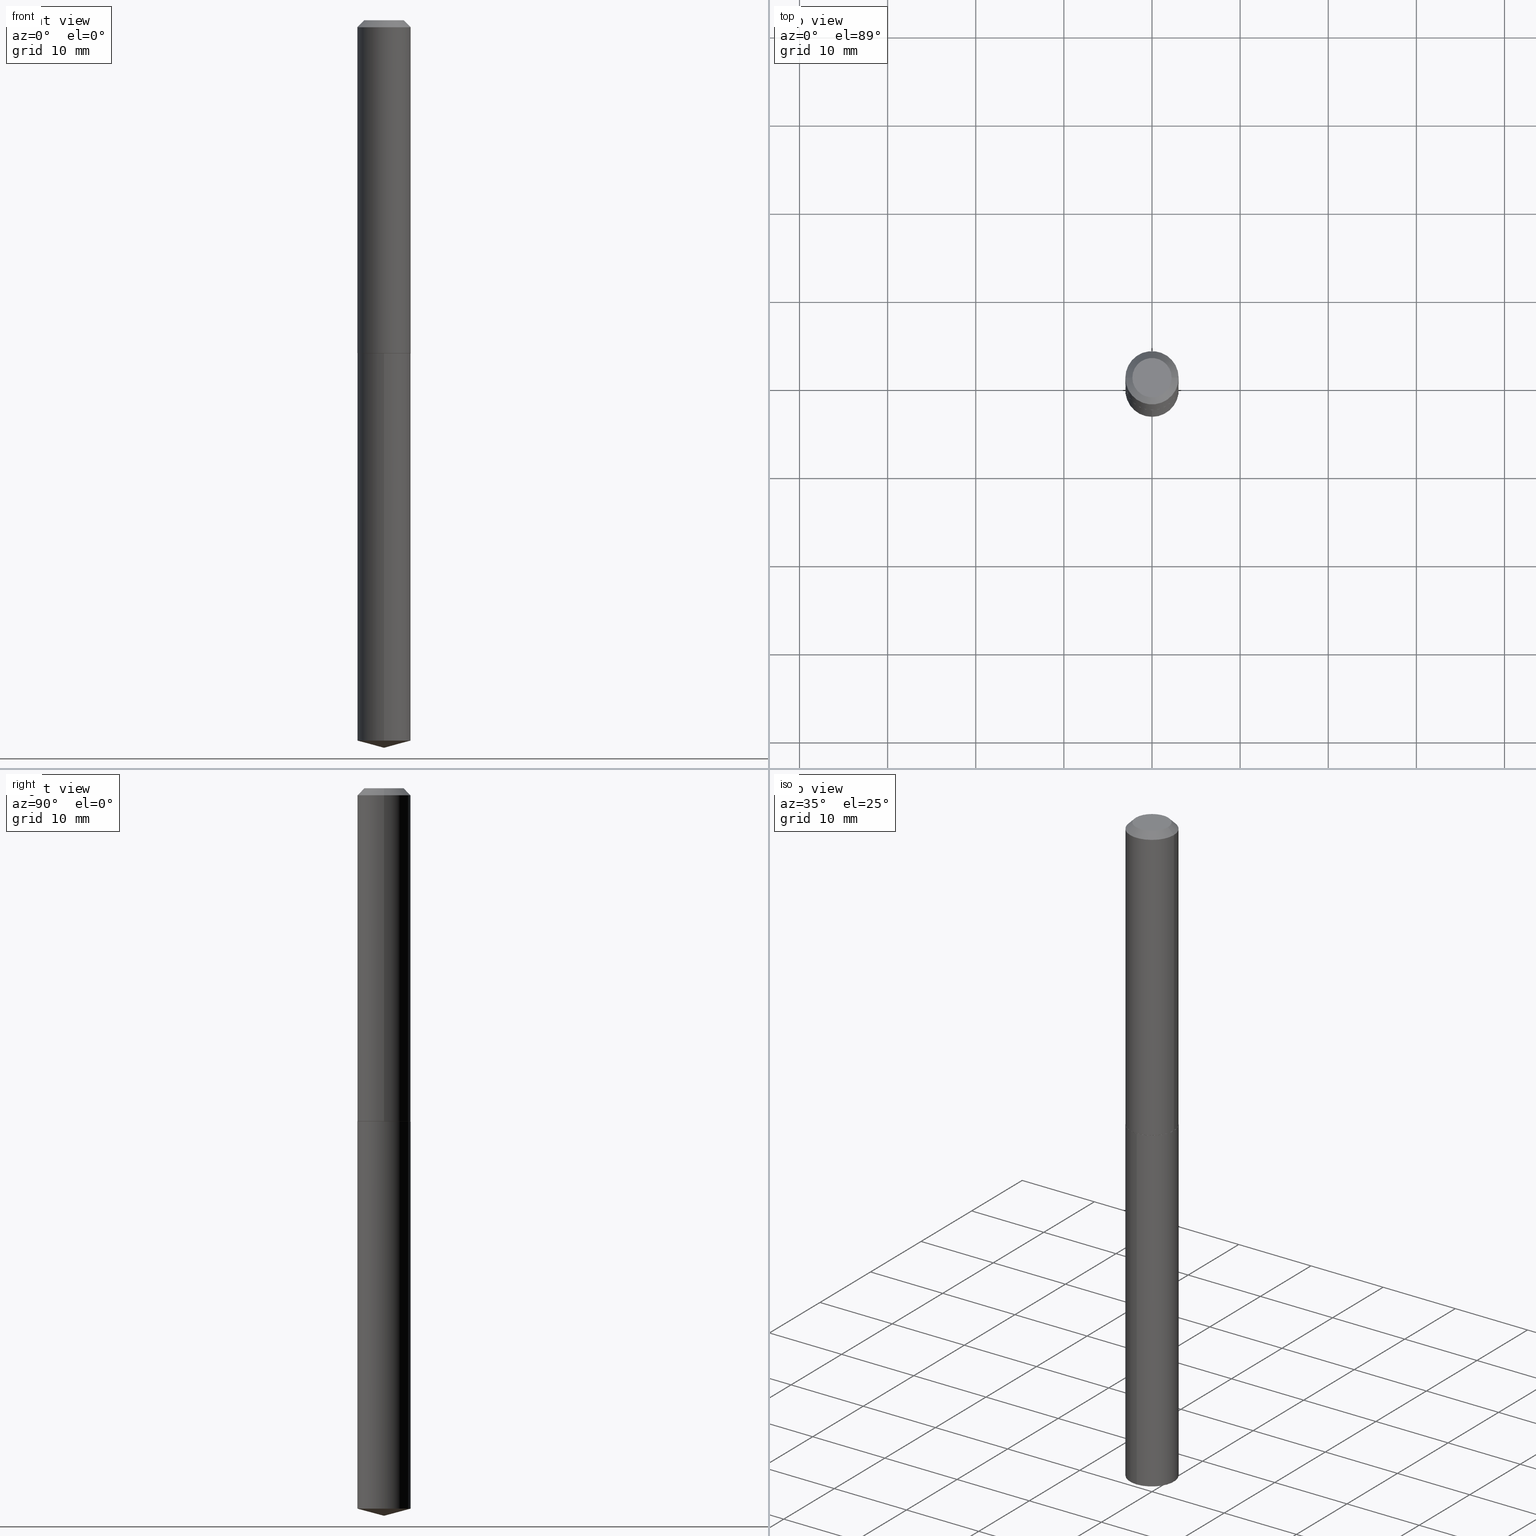
[diagram: canonical four-view strip — front | top / right | iso, engineering-drawing reading convention]
A machine part, canonical four-view strip (front | top / right | iso — engineering-drawing reading convention). The complete STEP part file that produces these views, byte-faithful:
ISO-10303-21;
HEADER;
FILE_DESCRIPTION (( 'STEP AP203' ),
    '1' );
FILE_NAME ('53202.STEP',
    '2024-04-22T19:20:55',
    ( '' ),
    ( '' ),
    'SwSTEP 2.0',
    'SolidWorks 2023',
    '' );
FILE_SCHEMA (( 'CONFIG_CONTROL_DESIGN' ));
ENDSEC;

DATA;
#1 = APPROVAL_STATUS ( 'not_yet_approved' ) ;
#2 = PLANE ( 'NONE',  #358 ) ;
#3 = VERTEX_POINT ( 'NONE', #47 ) ;
#4 = EDGE_CURVE ( 'NONE', #162, #316, #9, .T. ) ;
#5 = LINE ( 'NONE', #125, #323 ) ;
#6 = FACE_OUTER_BOUND ( 'NONE', #91, .T. ) ;
#7 = EDGE_LOOP ( 'NONE', ( #102, #99, #360, #220 ) ) ;
#8 = DIRECTION ( 'NONE',  ( -2.445468806185136597E-29, 3.491481338843145583E-15, 1.000000000000000000 ) ) ;
#9 = CIRCLE ( 'NONE', #390, 0.1190000000000000085 ) ;
#10 = AXIS2_PLACEMENT_3D ( 'NONE', #121, #199, #314 ) ;
#11 = SHAPE_DEFINITION_REPRESENTATION ( #63, #355 ) ;
#12 = EDGE_CURVE ( 'NONE', #283, #94, #49, .T. ) ;
#13 = CARTESIAN_POINT ( 'NONE',  ( -8.309725586446292892E-16, -0.1190000000000051988, -1.487999999999999545 ) ) ;
#14 = EDGE_CURVE ( 'NONE', #283, #153, #291, .T. ) ;
#15 = VERTEX_POINT ( 'NONE', #226 ) ;
#16 = VERTEX_POINT ( 'NONE', #169 ) ;
#17 = AXIS2_PLACEMENT_3D ( 'NONE', #56, #234, #240 ) ;
#18 = CONICAL_SURFACE ( 'NONE', #82, 0.1190000000000001890, 0.7853981633974824739 ) ;
#19 = LINE ( 'NONE', #13, #366 ) ;
#20 = EDGE_CURVE ( 'NONE', #368, #168, #192, .T. ) ;
#21 = PLANE ( 'NONE',  #58 ) ;
#22 = DIRECTION ( 'NONE',  ( -2.445468806185136597E-29, 3.491481338843145583E-15, 1.000000000000000000 ) ) ;
#23 = PRODUCT_DEFINITION ( 'UNKNOWN', '', #138, #145 ) ;
#24 = CARTESIAN_POINT ( 'NONE',  ( 7.642090019328600035E-31, -1.091087918388489897E-16, -0.03125000000000020123 ) ) ;
#25 = UNCERTAINTY_MEASURE_WITH_UNIT (LENGTH_MEASURE( 1.000000000000000082E-05 ), #328, 'distance_accuracy_value', 'NONE');
#26 = LOCAL_TIME ( 15, 20, 55.00000000000000000, #385 ) ;
#27 = DIRECTION ( 'NONE',  ( -2.445468806185136877E-29, 3.491481338843145188E-15, 1.000000000000000000 ) ) ;
#28 = DIRECTION ( 'NONE',  ( 1.000000000000000000, -6.982962677686265133E-15, 0.000000000000000000 ) ) ;
#29 = DIRECTION ( 'NONE',  ( -1.000000000000000000, 6.982962677686267499E-15, 0.000000000000000000 ) ) ;
#30 = CARTESIAN_POINT ( 'NONE',  ( -5.989671091818585255E-48, 8.551662891793849420E-34, 2.449293598294678361E-19 ) ) ;
#31 = PERSON_AND_ORGANIZATION ( #86, #178 ) ;
#32 = CC_DESIGN_APPROVAL ( #265, ( #257 ) ) ;
#33 = ORIENTED_EDGE ( 'NONE', *, *, #359, .F. ) ;
#34 = PERSON_AND_ORGANIZATION ( #86, #178 ) ;
#35 = EDGE_LOOP ( 'NONE', ( #343, #136, #246, #286 ) ) ;
#36 =( NAMED_UNIT ( * ) PLANE_ANGLE_UNIT ( ) SI_UNIT ( $, .RADIAN. ) );
#37 = AXIS2_PLACEMENT_3D ( 'NONE', #280, #345, #109 ) ;
#38 = CIRCLE ( 'NONE', #93, 0.1185000000000002579 ) ;
#39 = ORIENTED_EDGE ( 'NONE', *, *, #340, .F. ) ;
#40 = CONICAL_SURFACE ( 'NONE', #17, 0.1190000000000001890, 0.7853981633974824739 ) ;
#41 = DIRECTION ( 'NONE',  ( -2.439623832535255170E-29, 3.499851673785016113E-15, 1.000000000000000000 ) ) ;
#42 = ORIENTED_EDGE ( 'NONE', *, *, #206, .F. ) ;
#43 = EDGE_CURVE ( 'NONE', #168, #15, #374, .T. ) ;
#44 = DIRECTION ( 'NONE',  ( -0.7071067811865715536, 7.493145998870439357E-15, 0.7071067811865232589 ) ) ;
#45 = LOCAL_TIME ( 15, 20, 55.00000000000000000, #310 ) ;
#46 = ADVANCED_FACE ( 'NONE', ( #74 ), #315, .T. ) ;
#47 = CARTESIAN_POINT ( 'NONE',  ( 0.1190000000000001890, -6.024551050173846263E-15, -1.487500000000000266 ) ) ;
#48 = CARTESIAN_POINT ( 'NONE',  ( -0.1190000000000001890, -4.348032635974659038E-15, -1.487500000000000266 ) ) ;
#49 = LINE ( 'NONE', #233, #373 ) ;
#50 = APPROVAL_PERSON_ORGANIZATION ( #126, #265, #279 ) ;
#51 = FACE_OUTER_BOUND ( 'NONE', #123, .T. ) ;
#52 = APPROVAL ( #269, 'UNSPECIFIED' ) ;
#53 = DIRECTION ( 'NONE',  ( -2.445468806185136597E-29, 3.491481338843145583E-15, 1.000000000000000000 ) ) ;
#54 = CARTESIAN_POINT ( 'NONE',  ( 7.642090019328600035E-31, -1.091087918388489897E-16, -0.03125000000000020123 ) ) ;
#55 = DIRECTION ( 'NONE',  ( 1.000000000000000000, -6.982962677686264344E-15, 0.000000000000000000 ) ) ;
#56 = CARTESIAN_POINT ( 'NONE',  ( 3.637634849200391024E-29, -5.193578491529179010E-15, -1.487500000000000266 ) ) ;
#57 = APPLICATION_PROTOCOL_DEFINITION ( 'international standard', 'config_control_design', 1994, #241 ) ;
#58 = AXIS2_PLACEMENT_3D ( 'NONE', #141, #261, #85 ) ;
#59 = CARTESIAN_POINT ( 'NONE',  ( -0.1190000000000000085, 7.218637668058168706E-16, -0.03125000000000020123 ) ) ;
#60 = EDGE_LOOP ( 'NONE', ( #67, #140, #371, #304 ) ) ;
#61 = DATE_AND_TIME ( #122, #26 ) ;
#62 = CYLINDRICAL_SURFACE ( 'NONE', #105, 0.1190000000000001057 ) ;
#63 = PRODUCT_DEFINITION_SHAPE ( 'NONE', 'NONE',  #23 ) ;
#64 = ORIENTED_EDGE ( 'NONE', *, *, #384, .T. ) ;
#65 = APPROVAL_ROLE ( '' ) ;
#66 = FACE_OUTER_BOUND ( 'NONE', #311, .T. ) ;
#67 = ORIENTED_EDGE ( 'NONE', *, *, #127, .T. ) ;
#68 = AXIS2_PLACEMENT_3D ( 'NONE', #100, #8, #81 ) ;
#69 = AXIS2_PLACEMENT_3D ( 'NONE', #353, #180, #266 ) ;
#70 = ORIENTED_EDGE ( 'NONE', *, *, #206, .T. ) ;
#71 = CARTESIAN_POINT ( 'NONE',  ( -5.989671091818585255E-48, 8.551662891793849420E-34, 2.449293598294678361E-19 ) ) ;
#72 = ORIENTED_EDGE ( 'NONE', *, *, #97, .F. ) ;
#73 = DIRECTION ( 'NONE',  ( 1.000000000000000000, -6.982962677686267499E-15, 0.000000000000000000 ) ) ;
#74 = FACE_OUTER_BOUND ( 'NONE', #174, .T. ) ;
#75 = DIRECTION ( 'NONE',  ( -2.439623832535255170E-29, 3.499851673785016113E-15, 1.000000000000000000 ) ) ;
#76 = CALENDAR_DATE ( 2024, 22, 4 ) ;
#77 = DIRECTION ( 'NONE',  ( -2.445468806185136597E-29, 3.491481338843145583E-15, 1.000000000000000000 ) ) ;
#78 = EDGE_CURVE ( 'NONE', #213, #16, #19, .T. ) ;
#79 = ORIENTED_EDGE ( 'NONE', *, *, #384, .F. ) ;
#80 = DIRECTION ( 'NONE',  ( -6.982962677686265922E-15, -1.000000000000000000, 4.591341165822290427E-15 ) ) ;
#81 = DIRECTION ( 'NONE',  ( 1.000000000000000000, -6.982962677686264344E-15, 0.000000000000000000 ) ) ;
#82 = AXIS2_PLACEMENT_3D ( 'NONE', #176, #289, #28 ) ;
#83 = LINE ( 'NONE', #287, #209 ) ;
#84 = EDGE_CURVE ( 'NONE', #16, #15, #251, .T. ) ;
#85 = DIRECTION ( 'NONE',  ( 1.000000000000000000, -6.982962677686265922E-15, 4.876176775795935793E-29 ) ) ;
#86 = PERSON ( 'UNSPECIFIED', 'UNSPECIFIED', 'UNSPECIFIED', ('UNSPECIFIED'), ('UNSPECIFIED'), ('UNSPECIFIED') ) ;
#87 = DIRECTION ( 'NONE',  ( -2.445468806185136597E-29, 3.491481338843145583E-15, 1.000000000000000000 ) ) ;
#88 = DIMENSIONAL_EXPONENTS ( 1.000000000000000000, 0.000000000000000000, 0.000000000000000000, 0.000000000000000000, 0.000000000000000000, 0.000000000000000000, 0.000000000000000000 ) ;
#89 = CARTESIAN_POINT ( 'NONE',  ( -0.1185000000000002579, -4.350681863148769450E-15, -1.487999999999999989 ) ) ;
#90 = DIRECTION ( 'NONE',  ( -2.439623832535255170E-29, 3.499851673785016113E-15, 1.000000000000000000 ) ) ;
#91 = EDGE_LOOP ( 'NONE', ( #130, #104, #333, #198 ) ) ;
#92 = APPROVAL_ROLE ( '' ) ;
#93 = AXIS2_PLACEMENT_3D ( 'NONE', #237, #146, #55 ) ;
#94 = VERTEX_POINT ( 'NONE', #48 ) ;
#95 = MECHANICAL_CONTEXT ( 'NONE', #241, 'mechanical' ) ;
#96 = VERTEX_POINT ( 'NONE', #116 ) ;
#97 = EDGE_CURVE ( 'NONE', #158, #96, #139, .T. ) ;
#98 = VECTOR ( 'NONE', #349, 39.37007874015748854 ) ;
#99 = ORIENTED_EDGE ( 'NONE', *, *, #14, .T. ) ;
#100 = CARTESIAN_POINT ( 'NONE',  ( 3.638857583603483825E-29, -5.195324232198600513E-15, -1.487999999999999989 ) ) ;
#101 = MANIFOLD_SOLID_BREP ( 'Body-Move/Copy2[1]', #242 ) ;
#102 = ORIENTED_EDGE ( 'NONE', *, *, #12, .F. ) ;
#103 = CONICAL_SURFACE ( 'NONE', #10, 146.9311341562571158, 1.308996938995750758 ) ;
#104 = ORIENTED_EDGE ( 'NONE', *, *, #189, .T. ) ;
#105 = AXIS2_PLACEMENT_3D ( 'NONE', #365, #222, #300 ) ;
#106 = DATE_TIME_ROLE ( 'classification_date' ) ;
#107 = PRODUCT_RELATED_PRODUCT_CATEGORY ( 'detail', '', ( #298 ) ) ;
#108 = DIRECTION ( 'NONE',  ( 2.439623832535254889E-29, -3.499851673785016113E-15, -1.000000000000000000 ) ) ;
#109 = DIRECTION ( 'NONE',  ( 1.000000000000000000, -6.982962677686266711E-15, 4.876176775795935793E-29 ) ) ;
#110 = CARTESIAN_POINT ( 'NONE',  ( 0.08775000000000000855, -7.637583764390566358E-16, 2.449293598342803980E-19 ) ) ;
#111 = ORIENTED_EDGE ( 'NONE', *, *, #4, .F. ) ;
#112 = DIRECTION ( 'NONE',  ( 0.7071067811865453523, -7.319954787623248157E-15, -0.7071067811865496822 ) ) ;
#113 = LINE ( 'NONE', #59, #128 ) ;
#114 = LOCAL_TIME ( 15, 20, 55.00000000000000000, #152 ) ;
#115 = DIRECTION ( 'NONE',  ( 1.000000000000000000, -6.982962677686267499E-15, 4.876175344873014679E-29 ) ) ;
#116 = CARTESIAN_POINT ( 'NONE',  ( -0.08775000000000000855, 6.673093708863934050E-16, 2.449293598249920712E-19 ) ) ;
#117 = EDGE_CURVE ( 'NONE', #96, #162, #113, .T. ) ;
#118 = DIRECTION ( 'NONE',  ( 1.000000000000000000, -6.982962677686267499E-15, 0.000000000000000000 ) ) ;
#119 = FACE_OUTER_BOUND ( 'NONE', #389, .T. ) ;
#120 = ADVANCED_FACE ( 'NONE', ( #6 ), #62, .T. ) ;
#121 = CARTESIAN_POINT ( 'NONE',  ( -8.811070760674716084E-28, 1.264273730943802372E-13, 36.12007874015748143 ) ) ;
#122 = CALENDAR_DATE ( 2024, 22, 4 ) ;
#123 = EDGE_LOOP ( 'NONE', ( #223, #281 ) ) ;
#124 = ORIENTED_EDGE ( 'NONE', *, *, #232, .T. ) ;
#125 = CARTESIAN_POINT ( 'NONE',  ( 0.1190000000000001057, -8.309725586446664643E-16, 5.802650363197168610E-30 ) ) ;
#126 = PERSON_AND_ORGANIZATION ( #86, #178 ) ;
#127 = EDGE_CURVE ( 'NONE', #213, #168, #170, .T. ) ;
#128 = VECTOR ( 'NONE', #331, 39.37007874015748143 ) ;
#129 = AXIS2_PLACEMENT_3D ( 'NONE', #207, #53, #321 ) ;
#130 = ORIENTED_EDGE ( 'NONE', *, *, #149, .T. ) ;
#131 = COORDINATED_UNIVERSAL_TIME_OFFSET ( 5, 0, .BEHIND. ) ;
#132 = DIRECTION ( 'NONE',  ( 6.863315791527699781E-15, 0.9659258262890701996, 0.2588190451025139671 ) ) ;
#133 = ORIENTED_EDGE ( 'NONE', *, *, #84, .T. ) ;
#134 = ADVANCED_FACE ( 'NONE', ( #66 ), #2, .F. ) ;
#135 = ORIENTED_EDGE ( 'NONE', *, *, #160, .F. ) ;
#136 = ORIENTED_EDGE ( 'NONE', *, *, #12, .T. ) ;
#137 = AXIS2_PLACEMENT_3D ( 'NONE', #24, #377, #29 ) ;
#138 = PRODUCT_DEFINITION_FORMATION_WITH_SPECIFIED_SOURCE ( 'ANY', '', #298, .NOT_KNOWN. ) ;
#139 = CIRCLE ( 'NONE', #201, 0.08775000000000000855 ) ;
#140 = ORIENTED_EDGE ( 'NONE', *, *, #43, .T. ) ;
#141 = CARTESIAN_POINT ( 'NONE',  ( 3.638857583603483825E-29, -5.195324232198600513E-15, -1.487999999999999989 ) ) ;
#142 = LINE ( 'NONE', #376, #163 ) ;
#143 = CC_DESIGN_PERSON_AND_ORGANIZATION_ASSIGNMENT ( #166, #161, ( #138 ) ) ;
#144 = CYLINDRICAL_SURFACE ( 'NONE', #292, 0.1190000000000000085 ) ;
#145 = DESIGN_CONTEXT ( 'detailed design', #204, 'design' ) ;
#146 = DIRECTION ( 'NONE',  ( -2.445468806185136597E-29, 3.491481338843145583E-15, 1.000000000000000000 ) ) ;
#147 = ADVANCED_FACE ( 'NONE', ( #372 ), #259, .F. ) ;
#148 = LINE ( 'NONE', #290, #157 ) ;
#149 = EDGE_CURVE ( 'NONE', #3, #94, #190, .T. ) ;
#150 = CIRCLE ( 'NONE', #129, 0.1190000000000001890 ) ;
#151 = PERSON_AND_ORGANIZATION_ROLE ( 'design_owner' ) ;
#152 = COORDINATED_UNIVERSAL_TIME_OFFSET ( 5, 0, .BEHIND. ) ;
#153 = VERTEX_POINT ( 'NONE', #312 ) ;
#154 = DIRECTION ( 'NONE',  ( -6.982962677686265922E-15, -1.000000000000000000, 4.591341165822290427E-15 ) ) ;
#155 = DIRECTION ( 'NONE',  ( 1.000000000000000000, 0.000000000000000000, 0.000000000000000000 ) ) ;
#156 = CIRCLE ( 'NONE', #296, 0.1190000000000000085 ) ;
#157 = VECTOR ( 'NONE', #27, 39.37007874015748143 ) ;
#158 = VERTEX_POINT ( 'NONE', #110 ) ;
#159 = CARTESIAN_POINT ( 'NONE',  ( 7.859685043474742912E-29, -1.125046677228309181E-14, -3.218114046100696957 ) ) ;
#160 = EDGE_CURVE ( 'NONE', #96, #158, #284, .T. ) ;
#161 = PERSON_AND_ORGANIZATION_ROLE ( 'design_supplier' ) ;
#162 = VERTEX_POINT ( 'NONE', #263 ) ;
#163 = VECTOR ( 'NONE', #112, 39.37007874015748143 ) ;
#164 = CARTESIAN_POINT ( 'NONE',  ( 8.455458555545555695E-16, 0.1189999999999948183, -1.488000000000000655 ) ) ;
#165 = ORIENTED_EDGE ( 'NONE', *, *, #20, .T. ) ;
#166 = PERSON_AND_ORGANIZATION ( #86, #178 ) ;
#167 = DIRECTION ( 'NONE',  ( -1.000000000000000000, 6.982962677686265922E-15, -4.876176775795935793E-29 ) ) ;
#168 = VERTEX_POINT ( 'NONE', #293 ) ;
#169 = CARTESIAN_POINT ( 'NONE',  ( -8.309725586446291906E-16, -0.1190000000000051850, -1.487999999999999545 ) ) ;
#170 = CIRCLE ( 'NONE', #382, 0.1190000000000000085 ) ;
#171 = APPROVAL_PERSON_ORGANIZATION ( #332, #52, #65 ) ;
#172 = EDGE_CURVE ( 'NONE', #316, #162, #357, .T. ) ;
#173 = FACE_OUTER_BOUND ( 'NONE', #35, .T. ) ;
#174 = EDGE_LOOP ( 'NONE', ( #301, #124, #191, #111 ) ) ;
#175 = CC_DESIGN_DATE_AND_TIME_ASSIGNMENT ( #61, #184, ( #23 ) ) ;
#176 = CARTESIAN_POINT ( 'NONE',  ( 3.637634849200391024E-29, -5.193578491529179010E-15, -1.487500000000000266 ) ) ;
#177 = DIRECTION ( 'NONE',  ( -2.445468806185136597E-29, 3.491481338843145583E-15, 1.000000000000000000 ) ) ;
#178 = ORGANIZATION ( 'UNSPECIFIED', 'UNSPECIFIED', '' ) ;
#179 = AXIS2_PLACEMENT_3D ( 'NONE', #347, #77, #197 ) ;
#180 = DIRECTION ( 'NONE',  ( -2.439623832535255170E-29, 3.499851673785016113E-15, 1.000000000000000000 ) ) ;
#181 = CARTESIAN_POINT ( 'NONE',  ( 0.1190000000000001890, -6.024551050173846263E-15, -1.487500000000000266 ) ) ;
#182 = DIRECTION ( 'NONE',  ( -6.982962677686265922E-15, -1.000000000000000000, 4.591341165822291216E-15 ) ) ;
#183 = CIRCLE ( 'NONE', #388, 0.1189999999999999947 ) ;
#184 = DATE_TIME_ROLE ( 'creation_date' ) ;
#185 = DATE_AND_TIME ( #272, #335 ) ;
#186 = ORIENTED_EDGE ( 'NONE', *, *, #117, .F. ) ;
#187 = APPROVAL_DATE_TIME ( #361, #52 ) ;
#188 = DIRECTION ( 'NONE',  ( -6.982962677686266711E-15, -1.000000000000000000, 3.510303681827589946E-15 ) ) ;
#189 = EDGE_CURVE ( 'NONE', #94, #162, #148, .T. ) ;
#190 = CIRCLE ( 'NONE', #179, 0.1190000000000001890 ) ;
#191 = ORIENTED_EDGE ( 'NONE', *, *, #364, .T. ) ;
#192 = LINE ( 'NONE', #307, #208 ) ;
#193 = CARTESIAN_POINT ( 'NONE',  ( 3.638857583603483825E-29, -5.195324232198600513E-15, -1.487999999999999989 ) ) ;
#194 = SECURITY_CLASSIFICATION_LEVEL ( 'unclassified' ) ;
#195 = ADVANCED_FACE ( 'NONE', ( #173 ), #40, .T. ) ;
#196 = DIRECTION ( 'NONE',  ( -6.982962677686265922E-15, -1.000000000000000000, 4.591341165822291216E-15 ) ) ;
#197 = DIRECTION ( 'NONE',  ( 1.000000000000000000, -6.982962677686265133E-15, 0.000000000000000000 ) ) ;
#198 = ORIENTED_EDGE ( 'NONE', *, *, #364, .F. ) ;
#199 = DIRECTION ( 'NONE',  ( -2.439623832535255170E-29, 3.499851673785016113E-15, 1.000000000000000000 ) ) ;
#200 = DIRECTION ( 'NONE',  ( -2.439623832535255170E-29, 3.499851673785016113E-15, 1.000000000000000000 ) ) ;
#201 = AXIS2_PLACEMENT_3D ( 'NONE', #30, #22, #262 ) ;
#202 = ADVANCED_FACE ( 'NONE', ( #239 ), #303, .T. ) ;
#203 = CARTESIAN_POINT ( 'NONE',  ( 7.642090019328600035E-31, -1.091087918388489897E-16, -0.03125000000000020123 ) ) ;
#204 = APPLICATION_CONTEXT ( 'configuration controlled 3d designs of mechanical parts and assemblies' ) ;
#205 = FACE_OUTER_BOUND ( 'NONE', #370, .T. ) ;
#206 = EDGE_CURVE ( 'NONE', #368, #213, #83, .T. ) ;
#207 = CARTESIAN_POINT ( 'NONE',  ( 3.637634849200391024E-29, -5.193578491529179010E-15, -1.487500000000000266 ) ) ;
#208 = VECTOR ( 'NONE', #132, 39.37007874015747433 ) ;
#209 = VECTOR ( 'NONE', #356, 39.37007874015748854 ) ;
#210 = FACE_OUTER_BOUND ( 'NONE', #7, .T. ) ;
#211 = CARTESIAN_POINT ( 'NONE',  ( 0.000000000000000000, 0.000000000000000000, 0.000000000000000000 ) ) ;
#212 = LENGTH_MEASURE_WITH_UNIT ( LENGTH_MEASURE( 0.02539999999999999897 ), #270 );
#213 = VERTEX_POINT ( 'NONE', #354 ) ;
#214 = APPROVAL ( #1, 'UNSPECIFIED' ) ;
#215 = CC_DESIGN_APPROVAL ( #214, ( #138 ) ) ;
#216 = COORDINATED_UNIVERSAL_TIME_OFFSET ( 5, 0, .BEHIND. ) ;
#217 = APPLICATION_PROTOCOL_DEFINITION ( 'international standard', 'config_control_design', 1994, #204 ) ;
#218 = ORIENTED_EDGE ( 'NONE', *, *, #4, .T. ) ;
#219 = DIRECTION ( 'NONE',  ( -2.439623832535255170E-29, 3.499851673785016113E-15, 1.000000000000000000 ) ) ;
#220 = ORIENTED_EDGE ( 'NONE', *, *, #232, .F. ) ;
#221 =( GEOMETRIC_REPRESENTATION_CONTEXT ( 3 ) GLOBAL_UNCERTAINTY_ASSIGNED_CONTEXT ( ( #25 ) ) GLOBAL_UNIT_ASSIGNED_CONTEXT ( ( #328, #36, #248 ) ) REPRESENTATION_CONTEXT ( 'NONE', 'WORKASPACE' ) );
#222 = DIRECTION ( 'NONE',  ( -2.445468806185136597E-29, 3.491481338843145583E-15, 1.000000000000000000 ) ) ;
#223 = ORIENTED_EDGE ( 'NONE', *, *, #258, .F. ) ;
#224 = PERSON_AND_ORGANIZATION_ROLE ( 'creator' ) ;
#225 = ORIENTED_EDGE ( 'NONE', *, *, #127, .F. ) ;
#226 = CARTESIAN_POINT ( 'NONE',  ( 8.455458555545980694E-16, 0.1189999999999947905, -1.488000000000000655 ) ) ;
#227 = CC_DESIGN_DATE_AND_TIME_ASSIGNMENT ( #282, #106, ( #257 ) ) ;
#228 = CALENDAR_DATE ( 2024, 22, 4 ) ;
#229 = ORIENTED_EDGE ( 'NONE', *, *, #340, .T. ) ;
#230 = DIRECTION ( 'NONE',  ( 6.982962677686265922E-15, 1.000000000000000000, -3.499851673785016113E-15 ) ) ;
#231 = DIRECTION ( 'NONE',  ( 2.438088387897960049E-29, -3.491481338843145188E-15, -1.000000000000000000 ) ) ;
#232 = EDGE_CURVE ( 'NONE', #94, #3, #150, .T. ) ;
#233 = CARTESIAN_POINT ( 'NONE',  ( -0.1190000000000001890, -4.348032635974659038E-15, -1.487500000000000266 ) ) ;
#234 = DIRECTION ( 'NONE',  ( -2.445468806185136597E-29, 3.491481338843145583E-15, 1.000000000000000000 ) ) ;
#235 = LOCAL_TIME ( 15, 20, 55.00000000000000000, #131 ) ;
#236 = AXIS2_PLACEMENT_3D ( 'NONE', #203, #320, #318 ) ;
#237 = CARTESIAN_POINT ( 'NONE',  ( 3.638857583603483825E-29, -5.195324232198600513E-15, -1.487999999999999989 ) ) ;
#238 = ADVANCED_FACE ( 'NONE', ( #210 ), #18, .T. ) ;
#239 = FACE_OUTER_BOUND ( 'NONE', #348, .T. ) ;
#240 = DIRECTION ( 'NONE',  ( 1.000000000000000000, -6.982962677686265133E-15, 0.000000000000000000 ) ) ;
#241 = APPLICATION_CONTEXT ( 'configuration controlled 3d designs of mechanical parts and assemblies' ) ;
#242 = CLOSED_SHELL ( 'NONE', ( #253, #379, #327, #288, #147 ) ) ;
#243 = PERSON_AND_ORGANIZATION ( #86, #178 ) ;
#244 = ORIENTED_EDGE ( 'NONE', *, *, #97, .T. ) ;
#245 = PERSON_AND_ORGANIZATION ( #86, #178 ) ;
#246 = ORIENTED_EDGE ( 'NONE', *, *, #149, .F. ) ;
#247 = APPROVAL_PERSON_ORGANIZATION ( #243, #214, #92 ) ;
#248 =( NAMED_UNIT ( * ) SI_UNIT ( $, .STERADIAN. ) SOLID_ANGLE_UNIT ( ) );
#249 = DIRECTION ( 'NONE',  ( -6.982962677686265922E-15, -1.000000000000000000, 4.591341165822290427E-15 ) ) ;
#250 = FACE_OUTER_BOUND ( 'NONE', #342, .T. ) ;
#251 = CIRCLE ( 'NONE', #295, 0.1189999999999999947 ) ;
#252 = PERSON_AND_ORGANIZATION ( #86, #178 ) ;
#253 = ADVANCED_FACE ( 'NONE', ( #264 ), #144, .T. ) ;
#254 = CC_DESIGN_PERSON_AND_ORGANIZATION_ASSIGNMENT ( #252, #336, ( #257 ) ) ;
#255 = DIRECTION ( 'NONE',  ( -2.439623832535255170E-29, 3.499851673785016113E-15, 1.000000000000000000 ) ) ;
#256 = AXIS2_PLACEMENT_3D ( 'NONE', #54, #87, #118 ) ;
#257 = SECURITY_CLASSIFICATION ( '', '', #194 ) ;
#258 = EDGE_CURVE ( 'NONE', #153, #283, #38, .T. ) ;
#259 = PLANE ( 'NONE',  #351 ) ;
#260 = CC_DESIGN_PERSON_AND_ORGANIZATION_ASSIGNMENT ( #31, #151, ( #298 ) ) ;
#261 = DIRECTION ( 'NONE',  ( -2.438088387897960049E-29, 3.491481338843145188E-15, 1.000000000000000000 ) ) ;
#262 = DIRECTION ( 'NONE',  ( 1.000000000000000000, -6.982962677686267499E-15, 4.876175344873014679E-29 ) ) ;
#263 = CARTESIAN_POINT ( 'NONE',  ( -0.1190000000000000085, -1.805797786129493689E-15, -0.03125000000000020123 ) ) ;
#264 = FACE_OUTER_BOUND ( 'NONE', #60, .T. ) ;
#265 = APPROVAL ( #341, 'UNSPECIFIED' ) ;
#266 = DIRECTION ( 'NONE',  ( -6.982962677686265922E-15, -1.000000000000000000, 4.591341165822290427E-15 ) ) ;
#267 = LINE ( 'NONE', #181, #98 ) ;
#268 = CC_DESIGN_SECURITY_CLASSIFICATION ( #257, ( #138 ) ) ;
#269 = APPROVAL_STATUS ( 'not_yet_approved' ) ;
#270 =( LENGTH_UNIT ( ) NAMED_UNIT ( * ) SI_UNIT ( $, .METRE. ) );
#271 = EDGE_LOOP ( 'NONE', ( #133, #362 ) ) ;
#272 = CALENDAR_DATE ( 2024, 22, 4 ) ;
#273 = CARTESIAN_POINT ( 'NONE',  ( 7.859685043474742912E-29, -1.125046677228309181E-14, -3.218114046100696957 ) ) ;
#274 = AXIS2_PLACEMENT_3D ( 'NONE', #387, #90, #188 ) ;
#275 = PERSON_AND_ORGANIZATION_ROLE ( 'creator' ) ;
#276 = APPROVAL_DATE_TIME ( #305, #265 ) ;
#277 = ORIENTED_EDGE ( 'NONE', *, *, #160, .T. ) ;
#278 = CC_DESIGN_APPROVAL ( #52, ( #23 ) ) ;
#279 = APPROVAL_ROLE ( '' ) ;
#280 = CARTESIAN_POINT ( 'NONE',  ( 0.000000000000000000, 0.000000000000000000, 0.000000000000000000 ) ) ;
#281 = ORIENTED_EDGE ( 'NONE', *, *, #14, .F. ) ;
#282 = DATE_AND_TIME ( #76, #235 ) ;
#283 = VERTEX_POINT ( 'NONE', #89 ) ;
#284 = CIRCLE ( 'NONE', #324, 0.08775000000000000855 ) ;
#285 = CONICAL_SURFACE ( 'NONE', #274, 146.9311341562571158, 1.308996938995750758 ) ;
#286 = ORIENTED_EDGE ( 'NONE', *, *, #317, .F. ) ;
#287 = CARTESIAN_POINT ( 'NONE',  ( 7.928777455739579371E-29, -1.137451793980130217E-14, -3.250000000000000000 ) ) ;
#288 = ADVANCED_FACE ( 'NONE', ( #119 ), #378, .T. ) ;
#289 = DIRECTION ( 'NONE',  ( -2.445468806185136597E-29, 3.491481338843145583E-15, 1.000000000000000000 ) ) ;
#290 = CARTESIAN_POINT ( 'NONE',  ( -0.1190000000000001057, 8.455458555545199722E-16, -5.853532757403342650E-30 ) ) ;
#291 = CIRCLE ( 'NONE', #68, 0.1185000000000002579 ) ;
#292 = AXIS2_PLACEMENT_3D ( 'NONE', #380, #325, #80 ) ;
#293 = CARTESIAN_POINT ( 'NONE',  ( 8.455458555545976750E-16, 0.1189999999999887259, -3.218114046100697401 ) ) ;
#294 = CARTESIAN_POINT ( 'NONE',  ( 0.1190000000000000085, -9.400813504835147761E-16, -0.03125000000000020123 ) ) ;
#295 = AXIS2_PLACEMENT_3D ( 'NONE', #193, #75, #196 ) ;
#296 = AXIS2_PLACEMENT_3D ( 'NONE', #159, #219, #154 ) ;
#297 = ORIENTED_EDGE ( 'NONE', *, *, #43, .F. ) ;
#298 = PRODUCT ( '53202', '53202', '', ( #95 ) ) ;
#299 = APPROVAL_DATE_TIME ( #185, #214 ) ;
#300 = DIRECTION ( 'NONE',  ( 1.000000000000000000, -6.982962677686266711E-15, 4.876176775795935793E-29 ) ) ;
#301 = ORIENTED_EDGE ( 'NONE', *, *, #189, .F. ) ;
#302 = CARTESIAN_POINT ( 'NONE',  ( 7.928777455739580492E-29, -1.137451793980130217E-14, -3.250000000000000000 ) ) ;
#303 = CONICAL_SURFACE ( 'NONE', #137, 0.1190000000000000085, 0.7853981633974452814 ) ;
#304 = ORIENTED_EDGE ( 'NONE', *, *, #78, .F. ) ;
#305 = DATE_AND_TIME ( #228, #45 ) ;
#306 = CC_DESIGN_PERSON_AND_ORGANIZATION_ASSIGNMENT ( #245, #275, ( #23 ) ) ;
#307 = CARTESIAN_POINT ( 'NONE',  ( 7.946324627795573420E-29, -1.134960782301429731E-14, -3.250000000000000000 ) ) ;
#308 = AXIS2_PLACEMENT_3D ( 'NONE', #211, #326, #155 ) ;
#309 = ORIENTED_EDGE ( 'NONE', *, *, #20, .F. ) ;
#310 = COORDINATED_UNIVERSAL_TIME_OFFSET ( 5, 0, .BEHIND. ) ;
#311 = EDGE_LOOP ( 'NONE', ( #277, #244 ) ) ;
#312 = CARTESIAN_POINT ( 'NONE',  ( 0.1185000000000002579, -6.022805309504424759E-15, -1.487999999999999989 ) ) ;
#313 = CARTESIAN_POINT ( 'NONE',  ( 7.642090019328600035E-31, -1.091087918388489897E-16, -0.03125000000000020123 ) ) ;
#314 = DIRECTION ( 'NONE',  ( -6.982962677686266711E-15, -1.000000000000000000, 3.510303681827589946E-15 ) ) ;
#315 = CYLINDRICAL_SURFACE ( 'NONE', #37, 0.1190000000000001057 ) ;
#316 = VERTEX_POINT ( 'NONE', #294 ) ;
#317 = EDGE_CURVE ( 'NONE', #153, #3, #267, .T. ) ;
#318 = DIRECTION ( 'NONE',  ( -1.000000000000000000, 6.982962677686267499E-15, 0.000000000000000000 ) ) ;
#319 = CC_DESIGN_PERSON_AND_ORGANIZATION_ASSIGNMENT ( #34, #224, ( #138 ) ) ;
#320 = DIRECTION ( 'NONE',  ( 2.445468806185136597E-29, -3.491481338843145583E-15, -1.000000000000000000 ) ) ;
#321 = DIRECTION ( 'NONE',  ( 1.000000000000000000, -6.982962677686265133E-15, 0.000000000000000000 ) ) ;
#322 = CLOSED_SHELL ( 'NONE', ( #202, #120, #195, #330, #238, #46, #338, #134 ) ) ;
#323 = VECTOR ( 'NONE', #334, 39.37007874015748143 ) ;
#324 = AXIS2_PLACEMENT_3D ( 'NONE', #71, #177, #115 ) ;
#325 = DIRECTION ( 'NONE',  ( -2.439623832535255170E-29, 3.499851673785016113E-15, 1.000000000000000000 ) ) ;
#326 = DIRECTION ( 'NONE',  ( 0.000000000000000000, 0.000000000000000000, 1.000000000000000000 ) ) ;
#327 = ADVANCED_FACE ( 'NONE', ( #381 ), #103, .T. ) ;
#328 =( CONVERSION_BASED_UNIT ( 'INCH', #212 ) LENGTH_UNIT ( ) NAMED_UNIT ( #88 ) );
#329 = ORIENTED_EDGE ( 'NONE', *, *, #78, .T. ) ;
#330 = ADVANCED_FACE ( 'NONE', ( #51 ), #21, .F. ) ;
#331 = DIRECTION ( 'NONE',  ( -0.7071067811865453523, 2.468850131082234184E-15, -0.7071067811865496822 ) ) ;
#332 = PERSON_AND_ORGANIZATION ( #86, #178 ) ;
#333 = ORIENTED_EDGE ( 'NONE', *, *, #172, .F. ) ;
#334 = DIRECTION ( 'NONE',  ( -2.445468806185136877E-29, 3.491481338843145188E-15, 1.000000000000000000 ) ) ;
#335 = LOCAL_TIME ( 15, 20, 55.00000000000000000, #216 ) ;
#336 = PERSON_AND_ORGANIZATION_ROLE ( 'classification_officer' ) ;
#337 = DIRECTION ( 'NONE',  ( -2.439623832535255170E-29, 3.499851673785016113E-15, 1.000000000000000000 ) ) ;
#338 = ADVANCED_FACE ( 'NONE', ( #205 ), #367, .T. ) ;
#339 = DIRECTION ( 'NONE',  ( -2.445468806185136597E-29, 3.491481338843145583E-15, 1.000000000000000000 ) ) ;
#340 = EDGE_CURVE ( 'NONE', #158, #316, #142, .T. ) ;
#341 = APPROVAL_STATUS ( 'not_yet_approved' ) ;
#342 = EDGE_LOOP ( 'NONE', ( #42, #165, #225 ) ) ;
#343 = ORIENTED_EDGE ( 'NONE', *, *, #258, .T. ) ;
#344 = VECTOR ( 'NONE', #200, 39.37007874015748143 ) ;
#345 = DIRECTION ( 'NONE',  ( -2.445468806185136597E-29, 3.491481338843145583E-15, 1.000000000000000000 ) ) ;
#346 = EDGE_LOOP ( 'NONE', ( #309, #70, #79 ) ) ;
#347 = CARTESIAN_POINT ( 'NONE',  ( 3.637634849200391024E-29, -5.193578491529179010E-15, -1.487500000000000266 ) ) ;
#348 = EDGE_LOOP ( 'NONE', ( #72, #229, #350, #186 ) ) ;
#349 = DIRECTION ( 'NONE',  ( 0.7071067811865715536, -2.468850131082509496E-15, 0.7071067811865232589 ) ) ;
#350 = ORIENTED_EDGE ( 'NONE', *, *, #172, .T. ) ;
#351 = AXIS2_PLACEMENT_3D ( 'NONE', #375, #108, #230 ) ;
#352 = CARTESIAN_POINT ( 'NONE',  ( 3.638857583603483825E-29, -5.195324232198600513E-15, -1.487999999999999989 ) ) ;
#353 = CARTESIAN_POINT ( 'NONE',  ( 3.638857583603483825E-29, -5.195324232198600513E-15, -1.487999999999999989 ) ) ;
#354 = CARTESIAN_POINT ( 'NONE',  ( -8.309725586445868880E-16, -0.1190000000000112357, -3.218114046100696513 ) ) ;
#355 = ADVANCED_BREP_SHAPE_REPRESENTATION ( '53202', ( #101, #363, #308 ), #221 ) ;
#356 = DIRECTION ( 'NONE',  ( -6.745023994389843077E-15, -0.9659258262890682012, 0.2588190451025206285 ) ) ;
#357 = CIRCLE ( 'NONE', #256, 0.1190000000000000085 ) ;
#358 = AXIS2_PLACEMENT_3D ( 'NONE', #369, #231, #167 ) ;
#359 = EDGE_CURVE ( 'NONE', #15, #16, #183, .T. ) ;
#360 = ORIENTED_EDGE ( 'NONE', *, *, #317, .T. ) ;
#361 = DATE_AND_TIME ( #383, #114 ) ;
#362 = ORIENTED_EDGE ( 'NONE', *, *, #359, .T. ) ;
#363 = MANIFOLD_SOLID_BREP ( 'Body-Move/Copy2[2]', #322 ) ;
#364 = EDGE_CURVE ( 'NONE', #3, #316, #5, .T. ) ;
#365 = CARTESIAN_POINT ( 'NONE',  ( 0.000000000000000000, 0.000000000000000000, 0.000000000000000000 ) ) ;
#366 = VECTOR ( 'NONE', #255, 39.37007874015748143 ) ;
#367 = CONICAL_SURFACE ( 'NONE', #236, 0.1190000000000000085, 0.7853981633974452814 ) ;
#368 = VERTEX_POINT ( 'NONE', #302 ) ;
#369 = CARTESIAN_POINT ( 'NONE',  ( -2.994835545909292628E-48, 4.275831445896924710E-34, 1.224646799147339181E-19 ) ) ;
#370 = EDGE_LOOP ( 'NONE', ( #39, #135, #386, #218 ) ) ;
#371 = ORIENTED_EDGE ( 'NONE', *, *, #84, .F. ) ;
#372 = FACE_OUTER_BOUND ( 'NONE', #271, .T. ) ;
#373 = VECTOR ( 'NONE', #44, 39.37007874015748854 ) ;
#374 = LINE ( 'NONE', #164, #344 ) ;
#375 = CARTESIAN_POINT ( 'NONE',  ( 3.638857583603483825E-29, -5.195324232198600513E-15, -1.487999999999999989 ) ) ;
#376 = CARTESIAN_POINT ( 'NONE',  ( 0.1190000000000000085, -9.255080535736612682E-16, -0.03125000000000020123 ) ) ;
#377 = DIRECTION ( 'NONE',  ( 2.445468806185136597E-29, -3.491481338843145583E-15, -1.000000000000000000 ) ) ;
#378 = CYLINDRICAL_SURFACE ( 'NONE', #69, 0.1190000000000000085 ) ;
#379 = ADVANCED_FACE ( 'NONE', ( #250 ), #285, .T. ) ;
#380 = CARTESIAN_POINT ( 'NONE',  ( 3.638857583603483825E-29, -5.195324232198600513E-15, -1.487999999999999989 ) ) ;
#381 = FACE_OUTER_BOUND ( 'NONE', #346, .T. ) ;
#382 = AXIS2_PLACEMENT_3D ( 'NONE', #273, #337, #249 ) ;
#383 = CALENDAR_DATE ( 2024, 22, 4 ) ;
#384 = EDGE_CURVE ( 'NONE', #168, #213, #156, .T. ) ;
#385 = COORDINATED_UNIVERSAL_TIME_OFFSET ( 5, 0, .BEHIND. ) ;
#386 = ORIENTED_EDGE ( 'NONE', *, *, #117, .T. ) ;
#387 = CARTESIAN_POINT ( 'NONE',  ( -8.811070760674716084E-28, 1.264273730943802372E-13, 36.12007874015748143 ) ) ;
#388 = AXIS2_PLACEMENT_3D ( 'NONE', #352, #41, #182 ) ;
#389 = EDGE_LOOP ( 'NONE', ( #297, #64, #329, #33 ) ) ;
#390 = AXIS2_PLACEMENT_3D ( 'NONE', #313, #339, #73 ) ;
ENDSEC;
END-ISO-10303-21;
